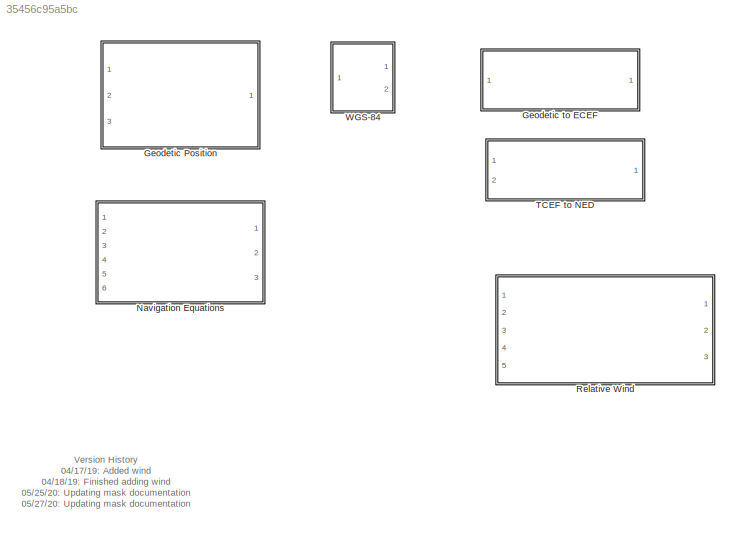
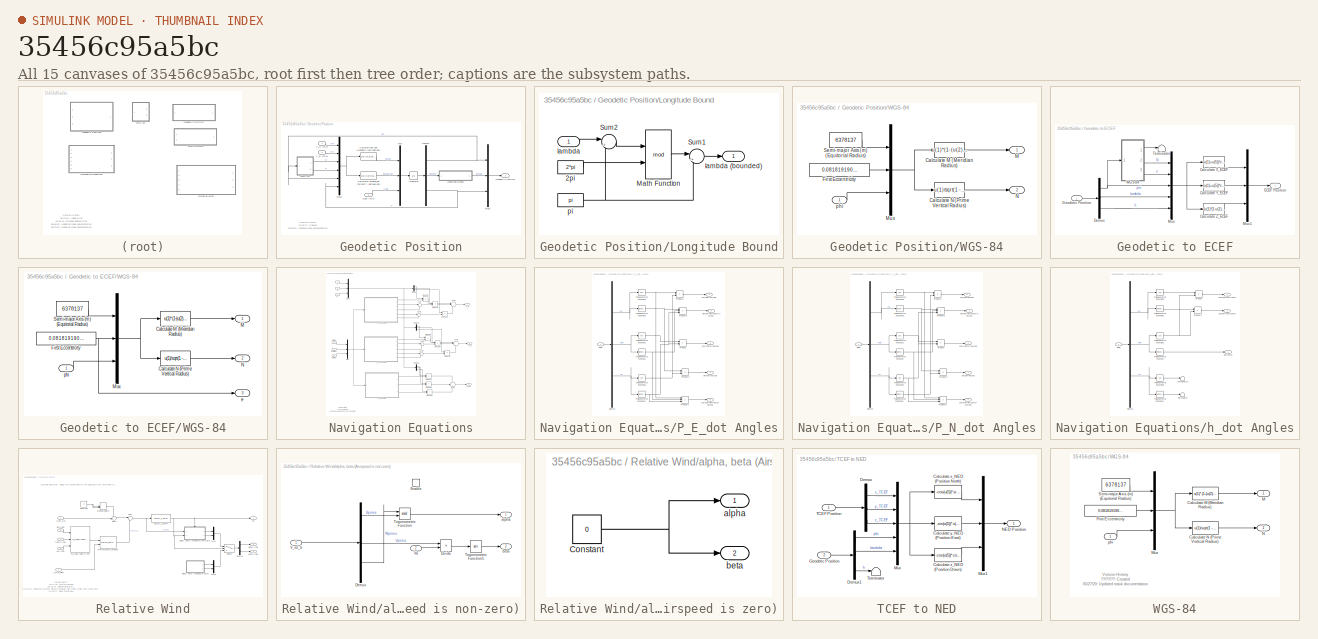
[diagram: thumbnail index - all 15 canvases of the model, root first then tree order]
MODEL slx_35456c95a5bc
KIND library
CONFIG AbsTol = auto
CONFIG EnableMultiTasking = on
CONFIG FixedStep = auto
CONFIG MaxStep = auto
CONFIG MinStep = auto
CONFIG RelTol = 1e-3
CONFIG SampleTimeConstraint = Unconstrained
CONFIG SolverName = ode45
CONFIG StartTime = 0.0
CONFIG StopTime = 10.0
BLOCK [SubSystem] Geodetic Position
  Ports = [3, 1]
  RequestExecContextInheritance = off
BLOCK [Fcn] Geodetic Position/Calculate lambda_dot (Terrestrial Longitude dot)
  Expr = u(2)/((u(4)+u(6))*cos(u(5)))
BLOCK [Fcn] Geodetic Position/Calculate phi_dot (Geodetic Latitude dot)
  Expr = u(1)/(u(3)+u(6))
BLOCK [Demux] Geodetic Position/Demux
  Outputs = 3
  Ports = [1, 3]
BLOCK [Outport] Geodetic Position/Geodetic Position
  VectorParamsAs1DForOutWhenUnconnected = off
BLOCK [Integrator] Geodetic Position/Integrator
  InitialCondition = Xgeodetic0
  Ports = [1, 1]
BLOCK [SubSystem] Geodetic Position/Longitude Bound
  Ports = [1, 1]
  RequestExecContextInheritance = off
BLOCK [Constant] Geodetic Position/Longitude Bound/2pi
  Value = 2*pi
BLOCK [Math] Geodetic Position/Longitude Bound/Math Function
  Operator = mod
  Ports = [2, 1]
  SignedPower = on
BLOCK [Sum] Geodetic Position/Longitude Bound/Sum1
  InputSameDT = on
  Inputs = |+-
  OutDataTypeStr = Inherit: Same as first input
  Ports = [2, 1]
  SaturateOnIntegerOverflow = on
BLOCK [Sum] Geodetic Position/Longitude Bound/Sum2
  InputSameDT = on
  Inputs = |++
  OutDataTypeStr = Inherit: Same as first input
  Ports = [2, 1]
  SaturateOnIntegerOverflow = on
BLOCK [Inport] Geodetic Position/Longitude Bound/lambda
BLOCK [Outport] Geodetic Position/Longitude Bound/lambda (bounded)
  VectorParamsAs1DForOutWhenUnconnected = off
BLOCK [Constant] Geodetic Position/Longitude Bound/pi
  Value = pi
BLOCK [Mux] Geodetic Position/Mux
  DisplayOption = bar
  Inputs = 3
  Ports = [3, 1]
BLOCK [Mux] Geodetic Position/Mux1
  DisplayOption = bar
  Inputs = 6
  Ports = [6, 1]
BLOCK [Mux] Geodetic Position/Mux2
  DisplayOption = bar
  Inputs = 3
  Ports = [3, 1]
BLOCK [Inport] Geodetic Position/V_E (m//s)
  Port = 2
BLOCK [Inport] Geodetic Position/V_N (m//s)
BLOCK [SubSystem] Geodetic Position/WGS-84
  Ports = [1, 2]
  RequestExecContextInheritance = off
BLOCK [Fcn] Geodetic Position/WGS-84/Calculate M (Meridian Radius)
  Expr = u(1)*(1-(u(2)^2))/((1-(u(2)^2)*(sin(u(3))^2))^(3/2))
BLOCK [Fcn] Geodetic Position/WGS-84/Calculate N (Prime Vertical Radius)
  Expr = u(1)/sqrt(1 - (u(2)^2)*(sin(u(3))^2))
BLOCK [Constant] Geodetic Position/WGS-84/First Eccentricity
  Value = 0.081819190842622
BLOCK [Outport] Geodetic Position/WGS-84/M 
  VectorParamsAs1DForOutWhenUnconnected = off
BLOCK [Mux] Geodetic Position/WGS-84/Mux
  DisplayOption = bar
  Inputs = 3
  Ports = [3, 1]
BLOCK [Outport] Geodetic Position/WGS-84/N
  Port = 2
  VectorParamsAs1DForOutWhenUnconnected = off
BLOCK [Constant] Geodetic Position/WGS-84/Semi-major Axis (m) (Equitorial Radius) 
  Value = 6378137
BLOCK [Inport] Geodetic Position/WGS-84/phi
BLOCK [Inport] Geodetic Position/h_dot (m//s)
  Port = 3
BLOCK [SubSystem] Geodetic to ECEF
  Description = Version History  \n                 \n05/??/05: Created
  Ports = [1, 1]
  RequestExecContextInheritance = off
BLOCK [Fcn] Geodetic to ECEF/Calculate X_ECEF
  Expr = (u(1)+u(5))*cos(u(3))*cos(u(4))
BLOCK [Fcn] Geodetic to ECEF/Calculate Y_ECEF
  Expr = (u(1)+u(5))*cos(u(3))*sin(u(4))
BLOCK [Fcn] Geodetic to ECEF/Calculate Z_ECEF
  Expr = (u(1)*(1-u(2)^2)+u(5))*sin(u(3))
BLOCK [Demux] Geodetic to ECEF/Demux
  Outputs = 3
  Ports = [1, 3]
BLOCK [Outport] Geodetic to ECEF/ECEF Position
  VectorParamsAs1DForOutWhenUnconnected = off
BLOCK [Inport] Geodetic to ECEF/Geodetic Position
BLOCK [Mux] Geodetic to ECEF/Mux
  DisplayOption = bar
  Inputs = 5
  Ports = [5, 1]
BLOCK [Mux] Geodetic to ECEF/Mux1
  DisplayOption = bar
  Inputs = 3
  Ports = [3, 1]
BLOCK [Terminator] Geodetic to ECEF/Terminator
BLOCK [SubSystem] Geodetic to ECEF/WGS-84
  Ports = [1, 3]
  RequestExecContextInheritance = off
BLOCK [Fcn] Geodetic to ECEF/WGS-84/Calculate M (Meridian Radius)
  Expr = u(1)*(1-(u(2)^2))/((1-(u(2)^2)*(sin(u(3))^2))^(3/2))
BLOCK [Fcn] Geodetic to ECEF/WGS-84/Calculate N (Prime Vertical Radius)
  Expr = u(1)/sqrt(1 - (u(2)^2)*(sin(u(3))^2))
BLOCK [Constant] Geodetic to ECEF/WGS-84/First Eccentricity
  Value = 0.081819190842622
BLOCK [Outport] Geodetic to ECEF/WGS-84/M 
  VectorParamsAs1DForOutWhenUnconnected = off
BLOCK [Mux] Geodetic to ECEF/WGS-84/Mux
  DisplayOption = bar
  Inputs = 3
  Ports = [3, 1]
BLOCK [Outport] Geodetic to ECEF/WGS-84/N
  Port = 2
  VectorParamsAs1DForOutWhenUnconnected = off
BLOCK [Constant] Geodetic to ECEF/WGS-84/Semi-major Axis (m) (Equitorial Radius) 
  Value = 6378137
BLOCK [Outport] Geodetic to ECEF/WGS-84/e
  Port = 3
  VectorParamsAs1DForOutWhenUnconnected = off
BLOCK [Inport] Geodetic to ECEF/WGS-84/phi
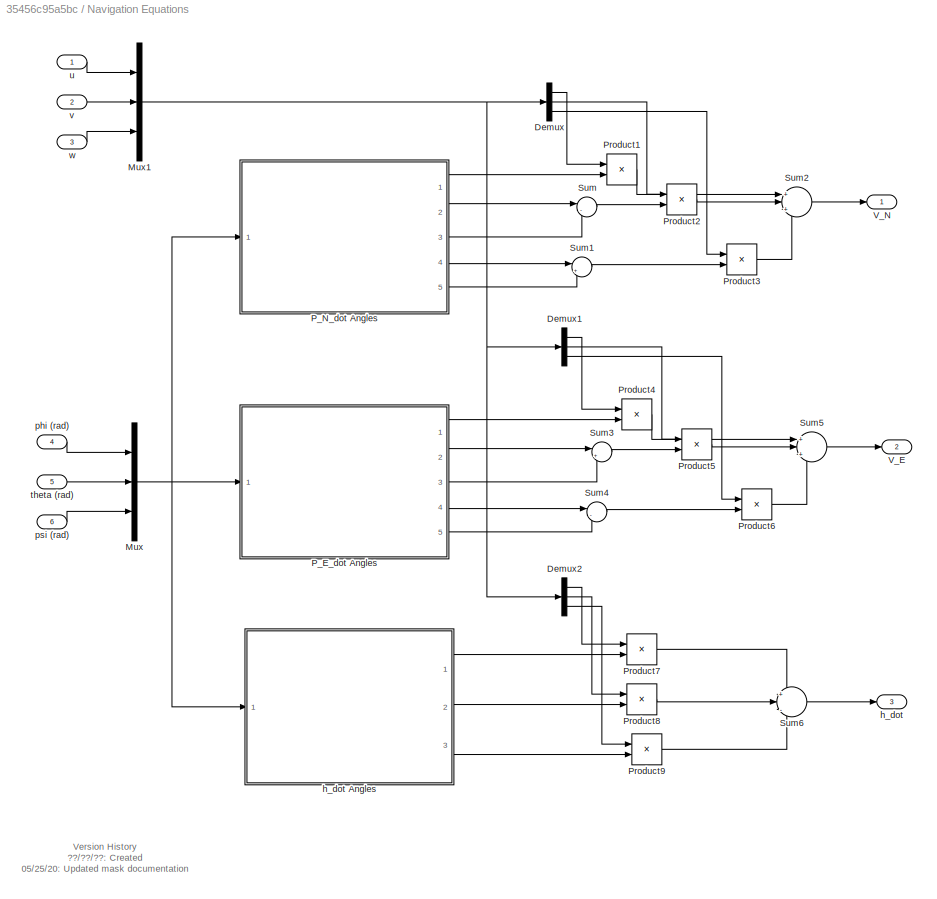
BLOCK [SubSystem] Navigation Equations
  Description = Version History  \n                 \n05/24/05: Created
  Ports = [6, 3]
  RequestExecContextInheritance = off
BLOCK [Demux] Navigation Equations/Demux
  Outputs = 3
  Ports = [1, 3]
BLOCK [Demux] Navigation Equations/Demux1
  Outputs = 3
  Ports = [1, 3]
BLOCK [Demux] Navigation Equations/Demux2
  Outputs = 3
  Ports = [1, 3]
BLOCK [Mux] Navigation Equations/Mux
  DisplayOption = bar
  Inputs = 3
  Ports = [3, 1]
BLOCK [Mux] Navigation Equations/Mux1
  DisplayOption = bar
  Inputs = 3
  Ports = [3, 1]
BLOCK [SubSystem] Navigation Equations/P_E_dot Angles
  Ports = [1, 5]
  RequestExecContextInheritance = off
BLOCK [Demux] Navigation Equations/P_E_dot Angles/Demux
  Outputs = 3
  Ports = [1, 3]
BLOCK [Inport] Navigation Equations/P_E_dot Angles/Euler
BLOCK [Product] Navigation Equations/P_E_dot Angles/Product
  Ports = [2, 1]
  RndMeth = Zero
BLOCK [Product] Navigation Equations/P_E_dot Angles/Product1
  Ports = [2, 1]
  RndMeth = Zero
BLOCK [Product] Navigation Equations/P_E_dot Angles/Product2
  Inputs = 3
  Ports = [3, 1]
  RndMeth = Zero
BLOCK [Product] Navigation Equations/P_E_dot Angles/Product3
  Ports = [2, 1]
  RndMeth = Zero
BLOCK [Product] Navigation Equations/P_E_dot Angles/Product4
  Inputs = 3
  Ports = [3, 1]
  RndMeth = Zero
BLOCK [Trigonometry] Navigation Equations/P_E_dot Angles/Trigonometric Function
  Ports = [1, 1]
BLOCK [Trigonometry] Navigation Equations/P_E_dot Angles/Trigonometric Function1
  Operator = cos
  Ports = [1, 1]
BLOCK [Trigonometry] Navigation Equations/P_E_dot Angles/Trigonometric Function2
  Ports = [1, 1]
BLOCK [Trigonometry] Navigation Equations/P_E_dot Angles/Trigonometric Function3
  Operator = cos
  Ports = [1, 1]
BLOCK [Trigonometry] Navigation Equations/P_E_dot Angles/Trigonometric Function4
  Ports = [1, 1]
BLOCK [Trigonometry] Navigation Equations/P_E_dot Angles/Trigonometric Function5
  Operator = cos
  Ports = [1, 1]
BLOCK [Outport] Navigation Equations/P_E_dot Angles/cos(phi)*cos(psi)
  Port = 2
  VectorParamsAs1DForOutWhenUnconnected = off
BLOCK [Outport] Navigation Equations/P_E_dot Angles/cos(phi)*sin(theta)*sin(psi)
  Port = 5
  VectorParamsAs1DForOutWhenUnconnected = off
BLOCK [Outport] Navigation Equations/P_E_dot Angles/cos(theta)*sin(psi)
  VectorParamsAs1DForOutWhenUnconnected = off
BLOCK [Outport] Navigation Equations/P_E_dot Angles/sin(phi)*cos(psi)
  Port = 4
  VectorParamsAs1DForOutWhenUnconnected = off
BLOCK [Outport] Navigation Equations/P_E_dot Angles/sin(phi)*sin(theta)*sin(psi)
  Port = 3
  VectorParamsAs1DForOutWhenUnconnected = off
BLOCK [SubSystem] Navigation Equations/P_N_dot Angles
  Ports = [1, 5]
  RequestExecContextInheritance = off
BLOCK [Demux] Navigation Equations/P_N_dot Angles/Demux
  Outputs = 3
  Ports = [1, 3]
BLOCK [Inport] Navigation Equations/P_N_dot Angles/Euler
BLOCK [Product] Navigation Equations/P_N_dot Angles/Product
  Ports = [2, 1]
  RndMeth = Zero
BLOCK [Product] Navigation Equations/P_N_dot Angles/Product1
  Ports = [2, 1]
  RndMeth = Zero
BLOCK [Product] Navigation Equations/P_N_dot Angles/Product2
  Inputs = 3
  Ports = [3, 1]
  RndMeth = Zero
BLOCK [Product] Navigation Equations/P_N_dot Angles/Product3
  Ports = [2, 1]
  RndMeth = Zero
BLOCK [Product] Navigation Equations/P_N_dot Angles/Product4
  Inputs = 3
  Ports = [3, 1]
  RndMeth = Zero
BLOCK [Trigonometry] Navigation Equations/P_N_dot Angles/Trigonometric Function
  Ports = [1, 1]
BLOCK [Trigonometry] Navigation Equations/P_N_dot Angles/Trigonometric Function1
  Operator = cos
  Ports = [1, 1]
BLOCK [Trigonometry] Navigation Equations/P_N_dot Angles/Trigonometric Function2
  Ports = [1, 1]
BLOCK [Trigonometry] Navigation Equations/P_N_dot Angles/Trigonometric Function3
  Operator = cos
  Ports = [1, 1]
BLOCK [Trigonometry] Navigation Equations/P_N_dot Angles/Trigonometric Function4
  Ports = [1, 1]
BLOCK [Trigonometry] Navigation Equations/P_N_dot Angles/Trigonometric Function5
  Operator = cos
  Ports = [1, 1]
BLOCK [Outport] Navigation Equations/P_N_dot Angles/cos(phi)*sin(psi) 
  Port = 2
  VectorParamsAs1DForOutWhenUnconnected = off
BLOCK [Outport] Navigation Equations/P_N_dot Angles/cos(phi)*sin(theta)*cos(psi)
  Port = 5
  VectorParamsAs1DForOutWhenUnconnected = off
BLOCK [Outport] Navigation Equations/P_N_dot Angles/cos(theta)*cos(psi)
  VectorParamsAs1DForOutWhenUnconnected = off
BLOCK [Outport] Navigation Equations/P_N_dot Angles/sin(phi)*sin(psi)
  Port = 4
  VectorParamsAs1DForOutWhenUnconnected = off
BLOCK [Outport] Navigation Equations/P_N_dot Angles/sin(phi)*sin(theta)*cos(psi)
  Port = 3
  VectorParamsAs1DForOutWhenUnconnected = off
BLOCK [Product] Navigation Equations/Product1
  Ports = [2, 1]
  RndMeth = Zero
BLOCK [Product] Navigation Equations/Product2
  Ports = [2, 1]
  RndMeth = Zero
BLOCK [Product] Navigation Equations/Product3
  Ports = [2, 1]
  RndMeth = Zero
BLOCK [Product] Navigation Equations/Product4
  Ports = [2, 1]
  RndMeth = Zero
BLOCK [Product] Navigation Equations/Product5
  Ports = [2, 1]
  RndMeth = Zero
BLOCK [Product] Navigation Equations/Product6
  Ports = [2, 1]
  RndMeth = Zero
BLOCK [Product] Navigation Equations/Product7
  Ports = [2, 1]
  RndMeth = Zero
BLOCK [Product] Navigation Equations/Product8
  Ports = [2, 1]
  RndMeth = Zero
BLOCK [Product] Navigation Equations/Product9
  Ports = [2, 1]
  RndMeth = Zero
BLOCK [Sum] Navigation Equations/Sum
  Inputs = |-+
  Ports = [2, 1]
BLOCK [Sum] Navigation Equations/Sum1
  Inputs = |++
  Ports = [2, 1]
BLOCK [Sum] Navigation Equations/Sum2
  Inputs = +|+|+
  Ports = [3, 1]
BLOCK [Sum] Navigation Equations/Sum3
  Inputs = |++
  Ports = [2, 1]
BLOCK [Sum] Navigation Equations/Sum4
  Inputs = |-+
  Ports = [2, 1]
BLOCK [Sum] Navigation Equations/Sum5
  Inputs = +|+|+
  Ports = [3, 1]
BLOCK [Sum] Navigation Equations/Sum6
  Inputs = +|-|-
  Ports = [3, 1]
BLOCK [Outport] Navigation Equations/V_E
  Port = 2
  VectorParamsAs1DForOutWhenUnconnected = off
BLOCK [Outport] Navigation Equations/V_N
  VectorParamsAs1DForOutWhenUnconnected = off
BLOCK [Outport] Navigation Equations/h_dot
  Port = 3
  VectorParamsAs1DForOutWhenUnconnected = off
BLOCK [SubSystem] Navigation Equations/h_dot Angles
  Ports = [1, 3]
  RequestExecContextInheritance = off
BLOCK [Demux] Navigation Equations/h_dot Angles/Demux
  Outputs = 3
  Ports = [1, 3]
BLOCK [Inport] Navigation Equations/h_dot Angles/Euler
BLOCK [Product] Navigation Equations/h_dot Angles/Product
  Ports = [2, 1]
  RndMeth = Zero
BLOCK [Product] Navigation Equations/h_dot Angles/Product1
  Ports = [2, 1]
  RndMeth = Zero
BLOCK [Terminator] Navigation Equations/h_dot Angles/Terminator
BLOCK [Terminator] Navigation Equations/h_dot Angles/Terminator1
BLOCK [Trigonometry] Navigation Equations/h_dot Angles/Trigonometric Function
  Ports = [1, 1]
BLOCK [Trigonometry] Navigation Equations/h_dot Angles/Trigonometric Function1
  Operator = cos
  Ports = [1, 1]
BLOCK [Trigonometry] Navigation Equations/h_dot Angles/Trigonometric Function2
  Ports = [1, 1]
BLOCK [Trigonometry] Navigation Equations/h_dot Angles/Trigonometric Function3
  Operator = cos
  Ports = [1, 1]
BLOCK [Trigonometry] Navigation Equations/h_dot Angles/Trigonometric Function4
  Ports = [1, 1]
BLOCK [Trigonometry] Navigation Equations/h_dot Angles/Trigonometric Function5
  Operator = cos
  Ports = [1, 1]
BLOCK [Outport] Navigation Equations/h_dot Angles/cos(phi)*cos(theta)
  Port = 3
  VectorParamsAs1DForOutWhenUnconnected = off
BLOCK [Outport] Navigation Equations/h_dot Angles/sin(phi)*cos(theta)
  Port = 2
  VectorParamsAs1DForOutWhenUnconnected = off
BLOCK [Outport] Navigation Equations/h_dot Angles/sin(theta)
  VectorParamsAs1DForOutWhenUnconnected = off
BLOCK [Inport] Navigation Equations/phi (rad)
  Port = 4
BLOCK [Inport] Navigation Equations/psi (rad)
  Port = 6
BLOCK [Inport] Navigation Equations/theta (rad)
  Port = 5
BLOCK [Inport] Navigation Equations/u
BLOCK [Inport] Navigation Equations/v
  Port = 2
BLOCK [Inport] Navigation Equations/w
  Port = 3
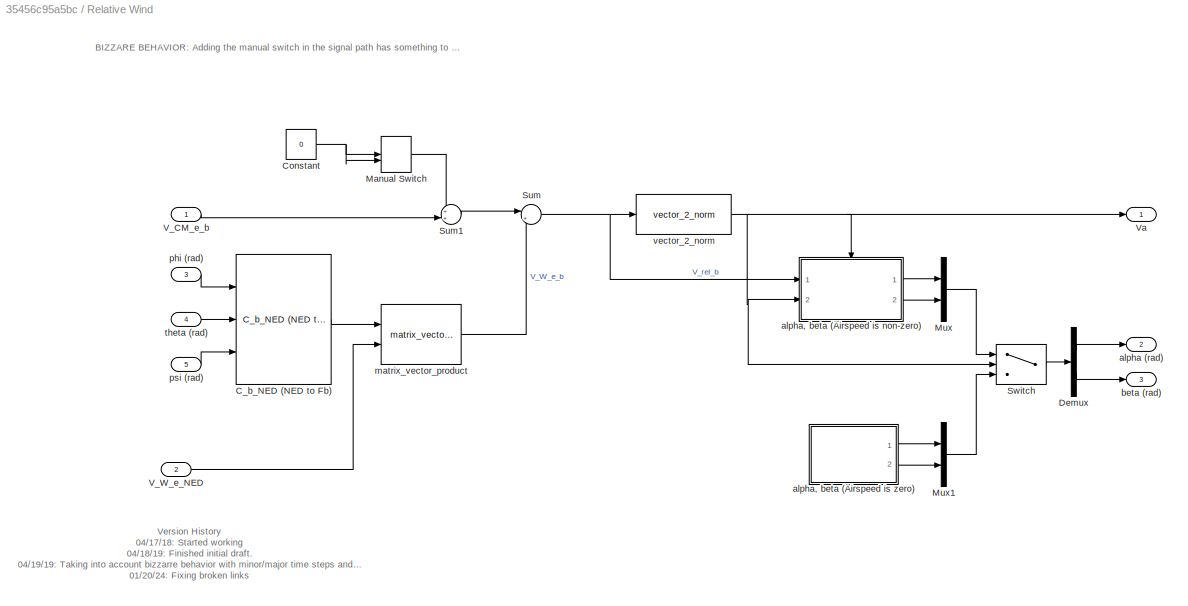
BLOCK [SubSystem] Relative Wind
  Ports = [5, 3]
  RequestExecContextInheritance = off
BLOCK [Reference] Relative Wind/C_b_NED (NED to Fb)  REF=LumAerospaceBlockset_Utilities/C_b_NED
(NED to Fb)
  Ports = [3, 1]
  SourceBlock = LumAerospaceBlockset_Utilities/C_b_NED\n(NED to Fb)
BLOCK [Constant] Relative Wind/Constant
  Value = 0
BLOCK [Demux] Relative Wind/Demux
  Outputs = 2
  Ports = [1, 2]
BLOCK [ManualSwitch] Relative Wind/Manual Switch
BLOCK [Mux] Relative Wind/Mux
  DisplayOption = bar
  Inputs = 2
  Ports = [2, 1]
BLOCK [Mux] Relative Wind/Mux1
  DisplayOption = bar
  Inputs = 2
  Ports = [2, 1]
BLOCK [Sum] Relative Wind/Sum
  Inputs = |+-
  Ports = [2, 1]
BLOCK [Sum] Relative Wind/Sum1
  Inputs = ++|
  Ports = [2, 1]
BLOCK [Switch] Relative Wind/Switch
  Criteria = u2 > Threshold
  InputSameDT = off
  SaturateOnIntegerOverflow = off
BLOCK [Inport] Relative Wind/V_CM_e_b
BLOCK [Inport] Relative Wind/V_W_e_NED
  Port = 2
BLOCK [Outport] Relative Wind/Va
  VectorParamsAs1DForOutWhenUnconnected = off
BLOCK [Outport] Relative Wind/alpha (rad)
  Port = 2
  VectorParamsAs1DForOutWhenUnconnected = off
BLOCK [SubSystem] Relative Wind/alpha, beta (Airspeed is non-zero)
  Ports = [2, 2, 1]
  RequestExecContextInheritance = off
BLOCK [Demux] Relative Wind/alpha, beta (Airspeed is non-zero)/Demux
  Outputs = 3
  Ports = [1, 3]
BLOCK [Product] Relative Wind/alpha, beta (Airspeed is non-zero)/Divide
  Inputs = */
  Ports = [2, 1]
BLOCK [EnablePort] Relative Wind/alpha, beta (Airspeed is non-zero)/Enable
  Ports = []
BLOCK [Trigonometry] Relative Wind/alpha, beta (Airspeed is non-zero)/Trigonometric Function
  Operator = atan2
  Ports = [2, 1]
BLOCK [Trigonometry] Relative Wind/alpha, beta (Airspeed is non-zero)/Trigonometric Function1
  Operator = asin
  Ports = [1, 1]
BLOCK [Inport] Relative Wind/alpha, beta (Airspeed is non-zero)/V_rel_b
BLOCK [Inport] Relative Wind/alpha, beta (Airspeed is non-zero)/Va
  Port = 2
BLOCK [Outport] Relative Wind/alpha, beta (Airspeed is non-zero)/alpha
  VectorParamsAs1DForOutWhenUnconnected = off
BLOCK [Outport] Relative Wind/alpha, beta (Airspeed is non-zero)/beta
  Port = 2
  VectorParamsAs1DForOutWhenUnconnected = off
BLOCK [SubSystem] Relative Wind/alpha, beta (Airspeed is zero)
  Ports = [0, 2]
  RequestExecContextInheritance = off
BLOCK [Constant] Relative Wind/alpha, beta (Airspeed is zero)/Constant
  Value = 0
BLOCK [Outport] Relative Wind/alpha, beta (Airspeed is zero)/alpha
  VectorParamsAs1DForOutWhenUnconnected = off
BLOCK [Outport] Relative Wind/alpha, beta (Airspeed is zero)/beta
  Port = 2
  VectorParamsAs1DForOutWhenUnconnected = off
BLOCK [Outport] Relative Wind/beta (rad)
  Port = 3
  VectorParamsAs1DForOutWhenUnconnected = off
BLOCK [Reference] Relative Wind/matrix_vector_product  REF=LumAerospaceBlockset_Utilities/matrix_vector_product
  Ports = [2, 1]
  SourceBlock = LumAerospaceBlockset_Utilities/matrix_vector_product
BLOCK [Inport] Relative Wind/phi (rad)
  Port = 3
BLOCK [Inport] Relative Wind/psi (rad)
  Port = 5
BLOCK [Inport] Relative Wind/theta (rad)
  Port = 4
BLOCK [Reference] Relative Wind/vector_2_norm  REF=LumAerospaceBlockset_Utilities/vector_2_norm
  Ports = [1, 1]
  SourceBlock = LumAerospaceBlockset_Utilities/vector_2_norm
BLOCK [SubSystem] TCEF to NED
  Description = Version History  \n                 \n05/??/05: Created
  Ports = [2, 1]
  RequestExecContextInheritance = off
BLOCK [Fcn] TCEF to NED/Calculate x_NED (Position North)
  Expr = -cos(u(5))*sin(u(4))*u(1) - sin(u(5))*sin(u(4))*u(2) + cos(u(4))*u(3)
BLOCK [Fcn] TCEF to NED/Calculate y_NED (Position East)
  Expr = -sin(u(5))*u(1) + cos(u(5))*u(2)
BLOCK [Fcn] TCEF to NED/Calculate z_NED (Position Down)
  Expr = -cos(u(5))*cos(u(4))*u(1) - cos(u(4))*sin(u(5))*u(2) - sin(u(4))*u(3)
BLOCK [Demux] TCEF to NED/Demux
  Outputs = 3
  Ports = [1, 3]
BLOCK [Demux] TCEF to NED/Demux1
  Outputs = 3
  Ports = [1, 3]
BLOCK [Inport] TCEF to NED/Geodetic Position
  Port = 2
BLOCK [Mux] TCEF to NED/Mux
  DisplayOption = bar
  Inputs = 5
  Ports = [5, 1]
BLOCK [Mux] TCEF to NED/Mux1
  DisplayOption = bar
  Inputs = 3
  Ports = [3, 1]
BLOCK [Outport] TCEF to NED/NED Position
  VectorParamsAs1DForOutWhenUnconnected = off
BLOCK [Inport] TCEF to NED/TCEF Position
BLOCK [Terminator] TCEF to NED/Terminator
BLOCK [SubSystem] WGS-84
  Description = Version History  \n                 \n05/??/05: Created
  Ports = [1, 2]
  RequestExecContextInheritance = off
BLOCK [Fcn] WGS-84/Calculate M (Meridian Radius)
  Expr = u(1)*(1-(u(2)^2))/((1-(u(2)^2)*(sin(u(3))^2))^(3/2))
BLOCK [Fcn] WGS-84/Calculate N (Prime Vertical Radius)
  Expr = u(1)/sqrt(1 - (u(2)^2)*(sin(u(3))^2))
BLOCK [Constant] WGS-84/First Eccentricity
  Value = 0.081819190842622
BLOCK [Outport] WGS-84/M 
  VectorParamsAs1DForOutWhenUnconnected = off
BLOCK [Mux] WGS-84/Mux
  DisplayOption = bar
  Inputs = 3
  Ports = [3, 1]
BLOCK [Outport] WGS-84/N
  Port = 2
  VectorParamsAs1DForOutWhenUnconnected = off
BLOCK [Constant] WGS-84/Semi-major Axis (m) (Equitorial Radius) 
  Value = 6378137
BLOCK [Inport] WGS-84/phi
ANNOTATION (root): Version History 04/17/19: Added wind 04/18/19: Finished adding wind 05/25/20: Updating mask documentation 05/27/20: Updating mask documentation
ANNOTATION Geodetic Position: Version History ??/??/??: Created 05/25/20: Updated mask documentation
ANNOTATION Navigation Equations: Version History ??/??/??: Created 05/25/20: Updated mask documentation
ANNOTATION Relative Wind: BIZZARE BEHAVIOR: Adding the manual switch in the signal path has something to do with how the minor/major timestep interacts with the enabled subsystem. Adding this makes it so the divide by zero wanring does not appear.
ANNOTATION Relative Wind: Version History 04/17/18: Started working 04/18/19: Finished initial draft. 04/19/19: Taking into account bizzarre behavior with minor/major time steps and the enabled subsystem and the divide by zero 01/20/24: Fixing broken links
ANNOTATION WGS-84: Version History ??/??/??: Created 05/27/20: Updated mask documentation
LINE Geodetic Position/Calculate lambda_dot (Terrestrial Longitude dot):1 -> Geodetic Position/Mux:2
LINE Geodetic Position/Calculate phi_dot (Geodetic Latitude dot):1 -> Geodetic Position/Mux:1
NET Geodetic Position/Demux:1 -> Geodetic Position/Mux1:5, Geodetic Position/Mux2:1, Geodetic Position/WGS-84:1
LINE Geodetic Position/Demux:2 -> Geodetic Position/Longitude Bound:1
NET Geodetic Position/Demux:3 -> Geodetic Position/Mux1:6, Geodetic Position/Mux2:3
LINE Geodetic Position/Integrator:1 -> Geodetic Position/Demux:1
LINE Geodetic Position/Longitude Bound/2pi:1 -> Geodetic Position/Longitude Bound/Math Function:2
LINE Geodetic Position/Longitude Bound/Math Function:1 -> Geodetic Position/Longitude Bound/Sum1:1
LINE Geodetic Position/Longitude Bound/Sum1:1 -> Geodetic Position/Longitude Bound/lambda (bounded):1
LINE Geodetic Position/Longitude Bound/Sum2:1 -> Geodetic Position/Longitude Bound/Math Function:1
LINE Geodetic Position/Longitude Bound/lambda:1 -> Geodetic Position/Longitude Bound/Sum2:1
NET Geodetic Position/Longitude Bound/pi:1 -> Geodetic Position/Longitude Bound/Sum1:2, Geodetic Position/Longitude Bound/Sum2:2
LINE Geodetic Position/Longitude Bound:1 -> Geodetic Position/Mux2:2
NET Geodetic Position/Mux1:1 -> Geodetic Position/Calculate lambda_dot (Terrestrial Longitude dot):1, Geodetic Position/Calculate phi_dot (Geodetic Latitude dot):1
LINE Geodetic Position/Mux2:1 -> Geodetic Position/Geodetic Position:1
LINE Geodetic Position/Mux:1 -> Geodetic Position/Integrator:1
LINE Geodetic Position/V_E (m//s):1 -> Geodetic Position/Mux1:2
LINE Geodetic Position/V_N (m//s):1 -> Geodetic Position/Mux1:1
LINE Geodetic Position/WGS-84/Calculate M (Meridian Radius):1 -> Geodetic Position/WGS-84/M :1
LINE Geodetic Position/WGS-84/Calculate N (Prime Vertical Radius):1 -> Geodetic Position/WGS-84/N:1
LINE Geodetic Position/WGS-84/First Eccentricity:1 -> Geodetic Position/WGS-84/Mux:2
NET Geodetic Position/WGS-84/Mux:1 -> Geodetic Position/WGS-84/Calculate M (Meridian Radius):1, Geodetic Position/WGS-84/Calculate N (Prime Vertical Radius):1
LINE Geodetic Position/WGS-84/Semi-major Axis (m) (Equitorial Radius) :1 -> Geodetic Position/WGS-84/Mux:1
LINE Geodetic Position/WGS-84/phi:1 -> Geodetic Position/WGS-84/Mux:3
LINE Geodetic Position/WGS-84:1 -> Geodetic Position/Mux1:3
LINE Geodetic Position/WGS-84:2 -> Geodetic Position/Mux1:4
LINE Geodetic Position/h_dot (m//s):1 -> Geodetic Position/Mux:3
LINE Geodetic to ECEF/Calculate X_ECEF:1 -> Geodetic to ECEF/Mux1:1
LINE Geodetic to ECEF/Calculate Y_ECEF:1 -> Geodetic to ECEF/Mux1:2
LINE Geodetic to ECEF/Calculate Z_ECEF:1 -> Geodetic to ECEF/Mux1:3
NET Geodetic to ECEF/Demux:1 -> Geodetic to ECEF/Mux:3, Geodetic to ECEF/WGS-84:1
LINE Geodetic to ECEF/Demux:2 -> Geodetic to ECEF/Mux:4
LINE Geodetic to ECEF/Demux:3 -> Geodetic to ECEF/Mux:5
LINE Geodetic to ECEF/Geodetic Position:1 -> Geodetic to ECEF/Demux:1
LINE Geodetic to ECEF/Mux1:1 -> Geodetic to ECEF/ECEF Position:1
NET Geodetic to ECEF/Mux:1 -> Geodetic to ECEF/Calculate X_ECEF:1, Geodetic to ECEF/Calculate Y_ECEF:1, Geodetic to ECEF/Calculate Z_ECEF:1
LINE Geodetic to ECEF/WGS-84/Calculate M (Meridian Radius):1 -> Geodetic to ECEF/WGS-84/M :1
LINE Geodetic to ECEF/WGS-84/Calculate N (Prime Vertical Radius):1 -> Geodetic to ECEF/WGS-84/N:1
NET Geodetic to ECEF/WGS-84/First Eccentricity:1 -> Geodetic to ECEF/WGS-84/Mux:2, Geodetic to ECEF/WGS-84/e:1
NET Geodetic to ECEF/WGS-84/Mux:1 -> Geodetic to ECEF/WGS-84/Calculate M (Meridian Radius):1, Geodetic to ECEF/WGS-84/Calculate N (Prime Vertical Radius):1
LINE Geodetic to ECEF/WGS-84/Semi-major Axis (m) (Equitorial Radius) :1 -> Geodetic to ECEF/WGS-84/Mux:1
LINE Geodetic to ECEF/WGS-84/phi:1 -> Geodetic to ECEF/WGS-84/Mux:3
LINE Geodetic to ECEF/WGS-84:1 -> Geodetic to ECEF/Terminator:1
LINE Geodetic to ECEF/WGS-84:2 -> Geodetic to ECEF/Mux:1
LINE Geodetic to ECEF/WGS-84:3 -> Geodetic to ECEF/Mux:2
LINE Navigation Equations/Demux1:1 -> Navigation Equations/Product4:1
LINE Navigation Equations/Demux1:2 -> Navigation Equations/Product5:1
LINE Navigation Equations/Demux1:3 -> Navigation Equations/Product6:1
LINE Navigation Equations/Demux2:1 -> Navigation Equations/Product7:1
LINE Navigation Equations/Demux2:2 -> Navigation Equations/Product8:1
LINE Navigation Equations/Demux2:3 -> Navigation Equations/Product9:1
LINE Navigation Equations/Demux:1 -> Navigation Equations/Product1:1
LINE Navigation Equations/Demux:2 -> Navigation Equations/Product2:1
LINE Navigation Equations/Demux:3 -> Navigation Equations/Product3:1
NET Navigation Equations/Mux1:1 -> Navigation Equations/Demux1:1, Navigation Equations/Demux2:1, Navigation Equations/Demux:1
NET Navigation Equations/Mux:1 -> Navigation Equations/P_E_dot Angles:1, Navigation Equations/P_N_dot Angles:1, Navigation Equations/h_dot Angles:1
NET Navigation Equations/P_E_dot Angles/Demux:1 -> Navigation Equations/P_E_dot Angles/Trigonometric Function2:1, Navigation Equations/P_E_dot Angles/Trigonometric Function3:1
NET Navigation Equations/P_E_dot Angles/Demux:2 -> Navigation Equations/P_E_dot Angles/Trigonometric Function1:1, Navigation Equations/P_E_dot Angles/Trigonometric Function:1
NET Navigation Equations/P_E_dot Angles/Demux:3 -> Navigation Equations/P_E_dot Angles/Trigonometric Function4:1, Navigation Equations/P_E_dot Angles/Trigonometric Function5:1
LINE Navigation Equations/P_E_dot Angles/Euler:1 -> Navigation Equations/P_E_dot Angles/Demux:1
LINE Navigation Equations/P_E_dot Angles/Product1:1 -> Navigation Equations/P_E_dot Angles/cos(phi)*cos(psi):1
LINE Navigation Equations/P_E_dot Angles/Product2:1 -> Navigation Equations/P_E_dot Angles/sin(phi)*sin(theta)*sin(psi):1
LINE Navigation Equations/P_E_dot Angles/Product3:1 -> Navigation Equations/P_E_dot Angles/sin(phi)*cos(psi):1
LINE Navigation Equations/P_E_dot Angles/Product4:1 -> Navigation Equations/P_E_dot Angles/cos(phi)*sin(theta)*sin(psi):1
LINE Navigation Equations/P_E_dot Angles/Product:1 -> Navigation Equations/P_E_dot Angles/cos(theta)*sin(psi):1
LINE Navigation Equations/P_E_dot Angles/Trigonometric Function1:1 -> Navigation Equations/P_E_dot Angles/Product:1
NET Navigation Equations/P_E_dot Angles/Trigonometric Function2:1 -> Navigation Equations/P_E_dot Angles/Product2:1, Navigation Equations/P_E_dot Angles/Product3:1
NET Navigation Equations/P_E_dot Angles/Trigonometric Function3:1 -> Navigation Equations/P_E_dot Angles/Product1:1, Navigation Equations/P_E_dot Angles/Product4:1
NET Navigation Equations/P_E_dot Angles/Trigonometric Function4:1 -> Navigation Equations/P_E_dot Angles/Product2:3, Navigation Equations/P_E_dot Angles/Product4:3, Navigation Equations/P_E_dot Angles/Product:2
NET Navigation Equations/P_E_dot Angles/Trigonometric Function5:1 -> Navigation Equations/P_E_dot Angles/Product1:2, Navigation Equations/P_E_dot Angles/Product3:2
NET Navigation Equations/P_E_dot Angles/Trigonometric Function:1 -> Navigation Equations/P_E_dot Angles/Product2:2, Navigation Equations/P_E_dot Angles/Product4:2
LINE Navigation Equations/P_E_dot Angles:1 -> Navigation Equations/Product4:2
LINE Navigation Equations/P_E_dot Angles:2 -> Navigation Equations/Sum3:1
LINE Navigation Equations/P_E_dot Angles:3 -> Navigation Equations/Sum3:2
LINE Navigation Equations/P_E_dot Angles:4 -> Navigation Equations/Sum4:1
LINE Navigation Equations/P_E_dot Angles:5 -> Navigation Equations/Sum4:2
NET Navigation Equations/P_N_dot Angles/Demux:1 -> Navigation Equations/P_N_dot Angles/Trigonometric Function2:1, Navigation Equations/P_N_dot Angles/Trigonometric Function3:1
NET Navigation Equations/P_N_dot Angles/Demux:2 -> Navigation Equations/P_N_dot Angles/Trigonometric Function1:1, Navigation Equations/P_N_dot Angles/Trigonometric Function:1
NET Navigation Equations/P_N_dot Angles/Demux:3 -> Navigation Equations/P_N_dot Angles/Trigonometric Function4:1, Navigation Equations/P_N_dot Angles/Trigonometric Function5:1
LINE Navigation Equations/P_N_dot Angles/Euler:1 -> Navigation Equations/P_N_dot Angles/Demux:1
LINE Navigation Equations/P_N_dot Angles/Product1:1 -> Navigation Equations/P_N_dot Angles/cos(phi)*sin(psi) :1
LINE Navigation Equations/P_N_dot Angles/Product2:1 -> Navigation Equations/P_N_dot Angles/sin(phi)*sin(theta)*cos(psi):1
LINE Navigation Equations/P_N_dot Angles/Product3:1 -> Navigation Equations/P_N_dot Angles/sin(phi)*sin(psi):1
LINE Navigation Equations/P_N_dot Angles/Product4:1 -> Navigation Equations/P_N_dot Angles/cos(phi)*sin(theta)*cos(psi):1
LINE Navigation Equations/P_N_dot Angles/Product:1 -> Navigation Equations/P_N_dot Angles/cos(theta)*cos(psi):1
LINE Navigation Equations/P_N_dot Angles/Trigonometric Function1:1 -> Navigation Equations/P_N_dot Angles/Product:1
NET Navigation Equations/P_N_dot Angles/Trigonometric Function2:1 -> Navigation Equations/P_N_dot Angles/Product2:1, Navigation Equations/P_N_dot Angles/Product3:1
NET Navigation Equations/P_N_dot Angles/Trigonometric Function3:1 -> Navigation Equations/P_N_dot Angles/Product1:1, Navigation Equations/P_N_dot Angles/Product4:1
NET Navigation Equations/P_N_dot Angles/Trigonometric Function4:1 -> Navigation Equations/P_N_dot Angles/Product1:2, Navigation Equations/P_N_dot Angles/Product3:2
NET Navigation Equations/P_N_dot Angles/Trigonometric Function5:1 -> Navigation Equations/P_N_dot Angles/Product2:3, Navigation Equations/P_N_dot Angles/Product4:3, Navigation Equations/P_N_dot Angles/Product:2
NET Navigation Equations/P_N_dot Angles/Trigonometric Function:1 -> Navigation Equations/P_N_dot Angles/Product2:2, Navigation Equations/P_N_dot Angles/Product4:2
LINE Navigation Equations/P_N_dot Angles:1 -> Navigation Equations/Product1:2
LINE Navigation Equations/P_N_dot Angles:2 -> Navigation Equations/Sum:1
LINE Navigation Equations/P_N_dot Angles:3 -> Navigation Equations/Sum:2
LINE Navigation Equations/P_N_dot Angles:4 -> Navigation Equations/Sum1:1
LINE Navigation Equations/P_N_dot Angles:5 -> Navigation Equations/Sum1:2
LINE Navigation Equations/Product1:1 -> Navigation Equations/Sum2:1
LINE Navigation Equations/Product2:1 -> Navigation Equations/Sum2:2
LINE Navigation Equations/Product3:1 -> Navigation Equations/Sum2:3
LINE Navigation Equations/Product4:1 -> Navigation Equations/Sum5:1
LINE Navigation Equations/Product5:1 -> Navigation Equations/Sum5:2
LINE Navigation Equations/Product6:1 -> Navigation Equations/Sum5:3
LINE Navigation Equations/Product7:1 -> Navigation Equations/Sum6:1
LINE Navigation Equations/Product8:1 -> Navigation Equations/Sum6:2
LINE Navigation Equations/Product9:1 -> Navigation Equations/Sum6:3
LINE Navigation Equations/Sum1:1 -> Navigation Equations/Product3:2
LINE Navigation Equations/Sum2:1 -> Navigation Equations/V_N:1
LINE Navigation Equations/Sum3:1 -> Navigation Equations/Product5:2
LINE Navigation Equations/Sum4:1 -> Navigation Equations/Product6:2
LINE Navigation Equations/Sum5:1 -> Navigation Equations/V_E:1
LINE Navigation Equations/Sum6:1 -> Navigation Equations/h_dot:1
LINE Navigation Equations/Sum:1 -> Navigation Equations/Product2:2
NET Navigation Equations/h_dot Angles/Demux:1 -> Navigation Equations/h_dot Angles/Trigonometric Function2:1, Navigation Equations/h_dot Angles/Trigonometric Function3:1
NET Navigation Equations/h_dot Angles/Demux:2 -> Navigation Equations/h_dot Angles/Trigonometric Function1:1, Navigation Equations/h_dot Angles/Trigonometric Function:1
NET Navigation Equations/h_dot Angles/Demux:3 -> Navigation Equations/h_dot Angles/Trigonometric Function4:1, Navigation Equations/h_dot Angles/Trigonometric Function5:1
LINE Navigation Equations/h_dot Angles/Euler:1 -> Navigation Equations/h_dot Angles/Demux:1
LINE Navigation Equations/h_dot Angles/Product1:1 -> Navigation Equations/h_dot Angles/sin(phi)*cos(theta):1
LINE Navigation Equations/h_dot Angles/Product:1 -> Navigation Equations/h_dot Angles/cos(phi)*cos(theta):1
NET Navigation Equations/h_dot Angles/Trigonometric Function1:1 -> Navigation Equations/h_dot Angles/Product1:2, Navigation Equations/h_dot Angles/Product:2
LINE Navigation Equations/h_dot Angles/Trigonometric Function2:1 -> Navigation Equations/h_dot Angles/Product1:1
LINE Navigation Equations/h_dot Angles/Trigonometric Function3:1 -> Navigation Equations/h_dot Angles/Product:1
LINE Navigation Equations/h_dot Angles/Trigonometric Function4:1 -> Navigation Equations/h_dot Angles/Terminator:1
LINE Navigation Equations/h_dot Angles/Trigonometric Function5:1 -> Navigation Equations/h_dot Angles/Terminator1:1
LINE Navigation Equations/h_dot Angles/Trigonometric Function:1 -> Navigation Equations/h_dot Angles/sin(theta):1
LINE Navigation Equations/h_dot Angles:1 -> Navigation Equations/Product7:2
LINE Navigation Equations/h_dot Angles:2 -> Navigation Equations/Product8:2
LINE Navigation Equations/h_dot Angles:3 -> Navigation Equations/Product9:2
LINE Navigation Equations/phi (rad):1 -> Navigation Equations/Mux:1
LINE Navigation Equations/psi (rad):1 -> Navigation Equations/Mux:3
LINE Navigation Equations/theta (rad):1 -> Navigation Equations/Mux:2
LINE Navigation Equations/u:1 -> Navigation Equations/Mux1:1
LINE Navigation Equations/v:1 -> Navigation Equations/Mux1:2
LINE Navigation Equations/w:1 -> Navigation Equations/Mux1:3
LINE Relative Wind/C_b_NED (NED to Fb):1 -> Relative Wind/matrix_vector_product:1
NET Relative Wind/Constant:1 -> Relative Wind/Manual Switch:1, Relative Wind/Manual Switch:2
LINE Relative Wind/Demux:1 -> Relative Wind/alpha (rad):1
LINE Relative Wind/Demux:2 -> Relative Wind/beta (rad):1
LINE Relative Wind/Manual Switch:1 -> Relative Wind/Sum1:1
LINE Relative Wind/Mux1:1 -> Relative Wind/Switch:3
LINE Relative Wind/Mux:1 -> Relative Wind/Switch:1
LINE Relative Wind/Sum1:1 -> Relative Wind/Sum:1
NET Relative Wind/Sum:1 -> Relative Wind/alpha, beta (Airspeed is non-zero):1, Relative Wind/vector_2_norm:1
LINE Relative Wind/Switch:1 -> Relative Wind/Demux:1
LINE Relative Wind/V_CM_e_b:1 -> Relative Wind/Sum1:2
LINE Relative Wind/V_W_e_NED:1 -> Relative Wind/matrix_vector_product:2
LINE Relative Wind/alpha, beta (Airspeed is non-zero)/Demux:1 -> Relative Wind/alpha, beta (Airspeed is non-zero)/Trigonometric Function:2
LINE Relative Wind/alpha, beta (Airspeed is non-zero)/Demux:2 -> Relative Wind/alpha, beta (Airspeed is non-zero)/Divide:1
LINE Relative Wind/alpha, beta (Airspeed is non-zero)/Demux:3 -> Relative Wind/alpha, beta (Airspeed is non-zero)/Trigonometric Function:1
LINE Relative Wind/alpha, beta (Airspeed is non-zero)/Divide:1 -> Relative Wind/alpha, beta (Airspeed is non-zero)/Trigonometric Function1:1
LINE Relative Wind/alpha, beta (Airspeed is non-zero)/Trigonometric Function1:1 -> Relative Wind/alpha, beta (Airspeed is non-zero)/beta:1
LINE Relative Wind/alpha, beta (Airspeed is non-zero)/Trigonometric Function:1 -> Relative Wind/alpha, beta (Airspeed is non-zero)/alpha:1
LINE Relative Wind/alpha, beta (Airspeed is non-zero)/V_rel_b:1 -> Relative Wind/alpha, beta (Airspeed is non-zero)/Demux:1
LINE Relative Wind/alpha, beta (Airspeed is non-zero)/Va:1 -> Relative Wind/alpha, beta (Airspeed is non-zero)/Divide:2
LINE Relative Wind/alpha, beta (Airspeed is non-zero):1 -> Relative Wind/Mux:1
LINE Relative Wind/alpha, beta (Airspeed is non-zero):2 -> Relative Wind/Mux:2
NET Relative Wind/alpha, beta (Airspeed is zero)/Constant:1 -> Relative Wind/alpha, beta (Airspeed is zero)/alpha:1, Relative Wind/alpha, beta (Airspeed is zero)/beta:1
LINE Relative Wind/alpha, beta (Airspeed is zero):1 -> Relative Wind/Mux1:1
LINE Relative Wind/alpha, beta (Airspeed is zero):2 -> Relative Wind/Mux1:2
LINE Relative Wind/matrix_vector_product:1 -> Relative Wind/Sum:2
LINE Relative Wind/phi (rad):1 -> Relative Wind/C_b_NED (NED to Fb):1
LINE Relative Wind/psi (rad):1 -> Relative Wind/C_b_NED (NED to Fb):3
LINE Relative Wind/theta (rad):1 -> Relative Wind/C_b_NED (NED to Fb):2
NET Relative Wind/vector_2_norm:1 -> Relative Wind/Switch:2, Relative Wind/Va:1, Relative Wind/alpha, beta (Airspeed is non-zero):2, Relative Wind/alpha, beta (Airspeed is non-zero):enable
LINE TCEF to NED/Calculate x_NED (Position North):1 -> TCEF to NED/Mux1:1
LINE TCEF to NED/Calculate y_NED (Position East):1 -> TCEF to NED/Mux1:2
LINE TCEF to NED/Calculate z_NED (Position Down):1 -> TCEF to NED/Mux1:3
LINE TCEF to NED/Demux1:1 -> TCEF to NED/Mux:4
LINE TCEF to NED/Demux1:2 -> TCEF to NED/Mux:5
LINE TCEF to NED/Demux1:3 -> TCEF to NED/Terminator:1
LINE TCEF to NED/Demux:1 -> TCEF to NED/Mux:1
LINE TCEF to NED/Demux:2 -> TCEF to NED/Mux:2
LINE TCEF to NED/Demux:3 -> TCEF to NED/Mux:3
LINE TCEF to NED/Geodetic Position:1 -> TCEF to NED/Demux1:1
LINE TCEF to NED/Mux1:1 -> TCEF to NED/NED Position:1
NET TCEF to NED/Mux:1 -> TCEF to NED/Calculate x_NED (Position North):1, TCEF to NED/Calculate y_NED (Position East):1, TCEF to NED/Calculate z_NED (Position Down):1
LINE TCEF to NED/TCEF Position:1 -> TCEF to NED/Demux:1
LINE WGS-84/Calculate M (Meridian Radius):1 -> WGS-84/M :1
LINE WGS-84/Calculate N (Prime Vertical Radius):1 -> WGS-84/N:1
LINE WGS-84/First Eccentricity:1 -> WGS-84/Mux:2
NET WGS-84/Mux:1 -> WGS-84/Calculate M (Meridian Radius):1, WGS-84/Calculate N (Prime Vertical Radius):1
LINE WGS-84/Semi-major Axis (m) (Equitorial Radius) :1 -> WGS-84/Mux:1
LINE WGS-84/phi:1 -> WGS-84/Mux:3
note: NET lines group one-source signal fan-out (src -> all destinations, sorted); 1:1 wires keep LINE
